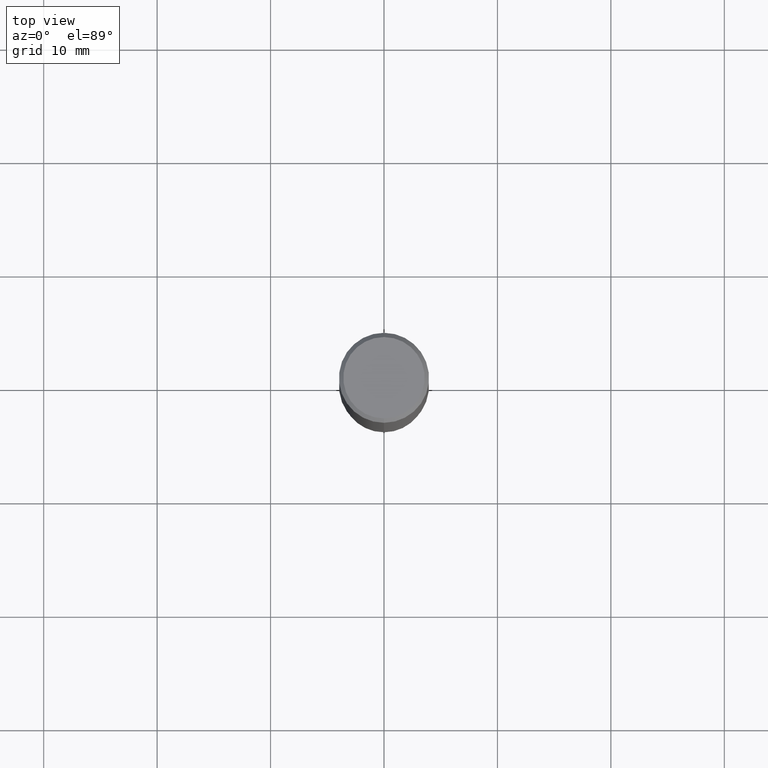
[diagram: clean part render]
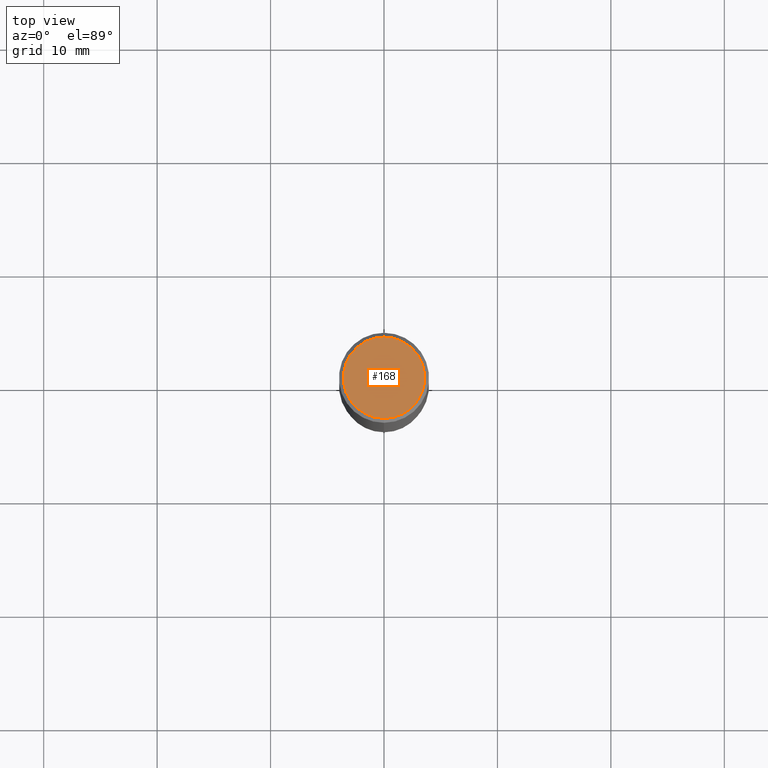
[diagram: same view with one face highlighted and labeled with its STEP entity id]
A machine part, top view. The second image highlights one B-rep face of the part: STEP entity #168.
In plain terms, the highlighted planar face has unit normal (0, -0, -1).
Its self-contained STEP definition (entity closure, byte-faithful):
#7 = DIRECTION ( 'NONE',  ( -6.982962677686265922E-15, -1.000000000000000000, 3.491450888933196382E-15 ) ) ;
#51 = EDGE_CURVE ( 'NONE', #278, #463, #297, .T. ) ;
#57 = ORIENTED_EDGE ( 'NONE', *, *, #222, .T. ) ;
#67 = EDGE_LOOP ( 'NONE', ( #57, #243 ) ) ;
#168 = ADVANCED_FACE ( 'NONE', ( #216 ), #181, .F. ) ;
#169 = AXIS2_PLACEMENT_3D ( 'NONE', #377, #231, #445 ) ;
#181 = PLANE ( 'NONE',  #310 ) ;
#216 = FACE_OUTER_BOUND ( 'NONE', #67, .T. ) ;
#222 = EDGE_CURVE ( 'NONE', #463, #278, #375, .T. ) ;
#231 = DIRECTION ( 'NONE',  ( -2.445490069243608012E-29, 3.491450888933196382E-15, 1.000000000000000000 ) ) ;
#235 = CARTESIAN_POINT ( 'NONE',  ( 1.038715698305832292E-15, 0.1412499999999999867, -5.229927836163188776E-16 ) ) ;
#243 = ORIENTED_EDGE ( 'NONE', *, *, #51, .T. ) ;
#278 = VERTEX_POINT ( 'NONE', #336 ) ;
#297 = CIRCLE ( 'NONE', #169, 0.1412499999999999867 ) ;
#310 = AXIS2_PLACEMENT_3D ( 'NONE', #447, #323, #454 ) ;
#321 = CARTESIAN_POINT ( 'NONE',  ( 7.293758636530057434E-46, -1.041337292490156746E-31, -2.982534555450484013E-17 ) ) ;
#323 = DIRECTION ( 'NONE',  ( 2.445490069243607732E-29, -3.491450888933196382E-15, -1.000000000000000000 ) ) ;
#336 = CARTESIAN_POINT ( 'NONE',  ( -1.020499077168515012E-15, -0.1412499999999999867, 4.633420925073091604E-16 ) ) ;
#353 = DIRECTION ( 'NONE',  ( -2.445490069243608012E-29, 3.491450888933196382E-15, 1.000000000000000000 ) ) ;
#375 = CIRCLE ( 'NONE', #442, 0.1412499999999999867 ) ;
#377 = CARTESIAN_POINT ( 'NONE',  ( 7.293758636530057434E-46, -1.041337292490156746E-31, -2.982534555450484013E-17 ) ) ;
#442 = AXIS2_PLACEMENT_3D ( 'NONE', #321, #353, #7 ) ;
#445 = DIRECTION ( 'NONE',  ( -6.982962677686265922E-15, -1.000000000000000000, 3.491450888933196382E-15 ) ) ;
#447 = CARTESIAN_POINT ( 'NONE',  ( 9.863434782231850151E-16, 0.1412499999999999867, -5.080801108390663251E-16 ) ) ;
#454 = DIRECTION ( 'NONE',  ( 6.982962677686265922E-15, 1.000000000000000000, -3.491450888933196382E-15 ) ) ;
#463 = VERTEX_POINT ( 'NONE', #235 ) ;